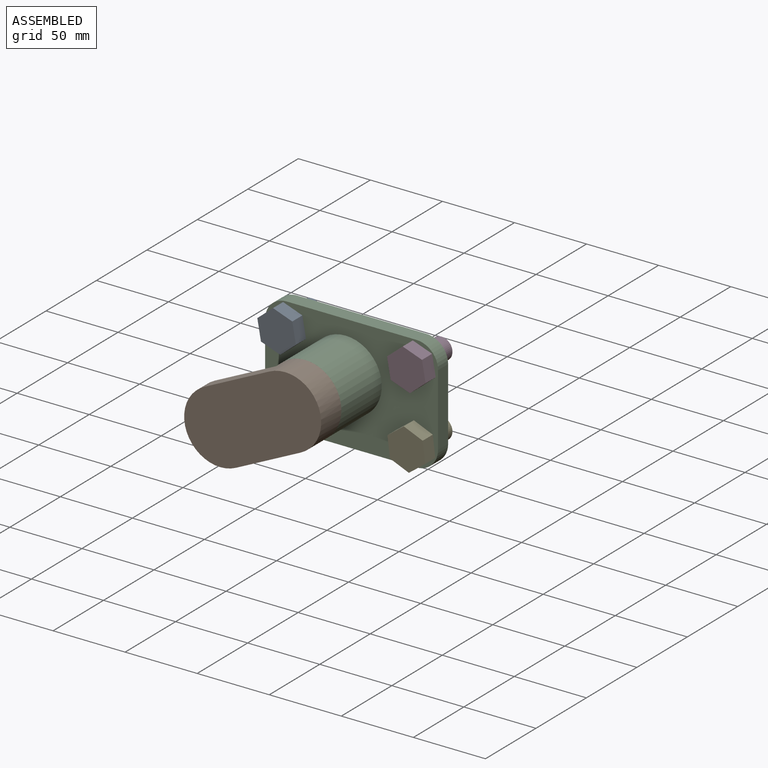
[diagram: assembled view]
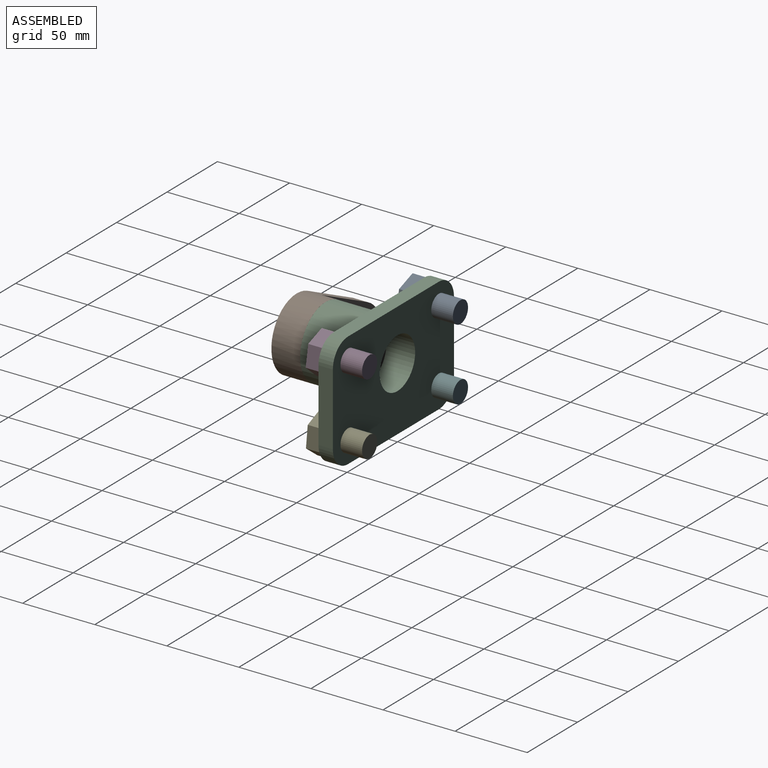
[diagram: assembled view, second angle]
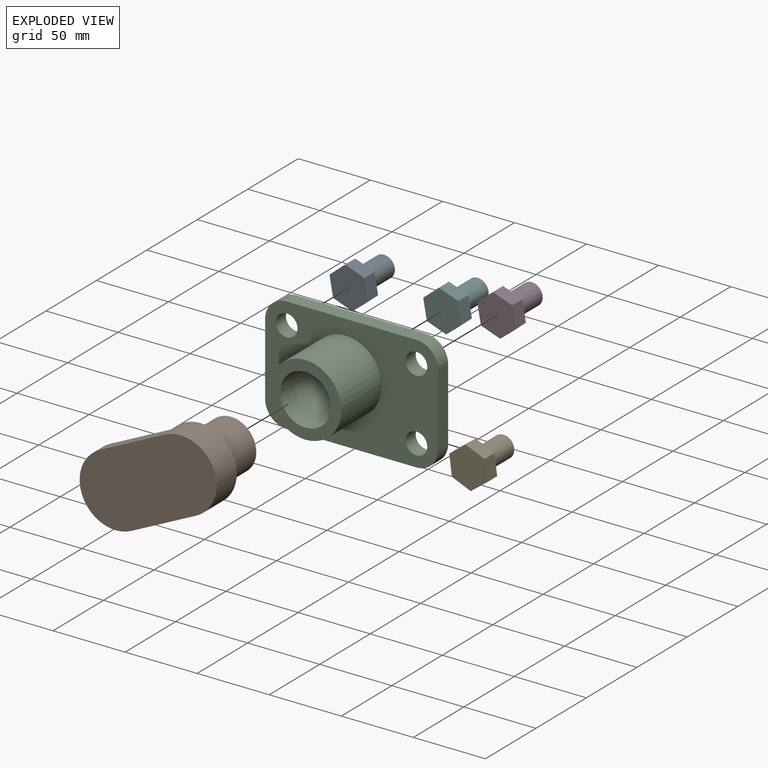
[diagram: exploded view]
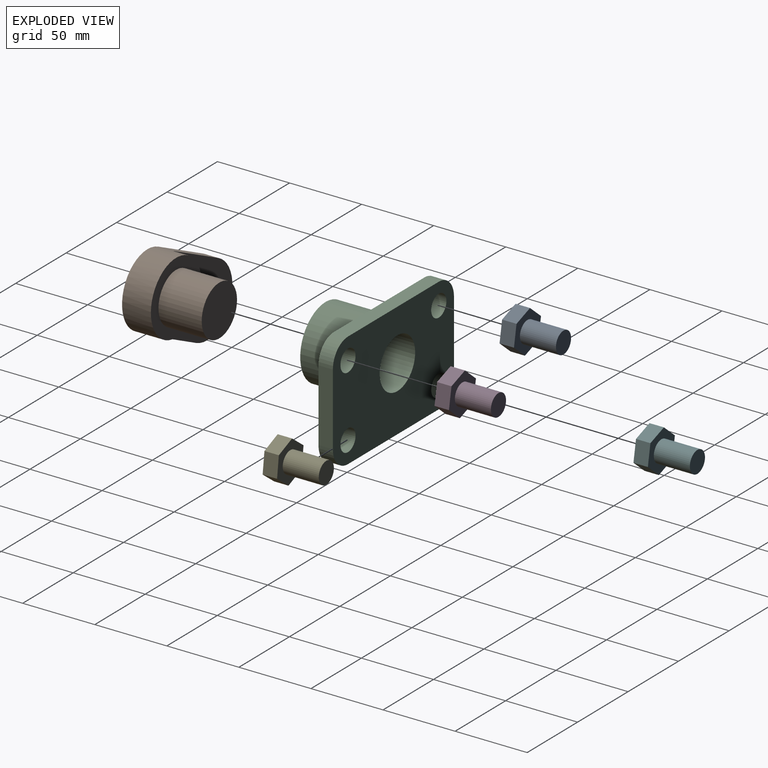
[diagram: exploded view, second angle]
ASSEMBLY  parts=6 mates=10
PART A: 10 faces, bbox 26.8x35x28 mm
  f0: cylinder r=7.5mm len=25mm, axis (0,1,0), area 1178.1mm2, adj f1,f8
  f1: plane 15x15mm, normal (0,-1,0), area 176.7mm2, adj f0
  f2: plane 10.87x10mm, normal (0.65,0,0.76), area 142.2mm2, adj f3,f7,f8,f9
  f3: plane 13.38x10mm, normal (-0.34,0,0.94), area 142.2mm2, adj f2,f4,f8,f9
  f4: plane 14x10mm, normal (-0.98,0,0.18), area 142.2mm2, adj f3,f5,f8,f9
  f5: plane 10.87x10mm, normal (-0.65,0,-0.76), area 142.2mm2, adj f4,f6,f8,f9
  f6: plane 13.38x10mm, normal (0.34,0,-0.94), area 142.2mm2, adj f5,f7,f8,f9
  f7: plane 14x10mm, normal (0.98,0,-0.18), area 142.2mm2, adj f2,f6,f8,f9
  f8: plane 28x26.76mm, normal (0,-1,0), area 348.9mm2, adj f0,f2,f3,f4,f5,f6,f7
  f9: plane 28x26.76mm, normal (0,1,0), area 525.6mm2, adj f2,f3,f4,f5,f6,f7
PART B: 9 faces, bbox 100x50x50 mm
  f0: cylinder r=25mm len=50mm, axis (0,1,0), area 785.4mm2, adj f1,f2,f3,f4
  f1: plane 50x10mm, normal (0,0,-1), area 500mm2, adj f0,f3,f4,f7
  f2: plane 50x10mm, normal (0,0,1), area 500mm2, adj f0,f3,f4,f7
  f3: plane 75x50mm, normal (0,-1,0), area 2500mm2, adj f0,f1,f2,f7
  f4: plane 100x50mm, normal (0,1,0), area 4463.5mm2, adj f0,f1,f2,f7
  f5: cylinder r=17.5mm len=35mm, axis (0,1,0), area 3298.7mm2, adj f6,f8
  f6: plane 35x35mm, normal (0,-1,0), area 962.1mm2, adj f5
  f7: cylinder r=25mm len=50mm, axis (0,1,0), area 2356.2mm2, adj f1,f2,f3,f4,f8
  f8: plane 50x50mm, normal (0,-1,0), area 1001.4mm2, adj f5,f7
PART C: 17 faces, bbox 120x50x80 mm
  f0: cylinder r=17.5mm len=50mm, axis (0,1,0), area 5497.8mm2, adj f2,f3
  f1: cylinder r=25mm len=50mm, axis (0,1,0), area 6283.2mm2, adj f2,f16
  f2: plane 50x50mm, normal (0,-1,0), area 1001.4mm2, adj f0,f1
  f3: plane 120x80mm, normal (0,1,0), area 7737.9mm2, adj f0,f4,f5,f6,f7,f8,f9,f10
  f4: plane 50x10mm, normal (1,0,0), area 500mm2, adj f3,f5,f15,f16
  f5: cylinder r=15mm len=15mm, axis (0,1,0), area 235.6mm2, adj f3,f4,f6,f16
  f6: plane 90x10mm, normal (0,0,1), area 900mm2, adj f3,f5,f7,f16
  f7: cylinder r=15mm len=15mm, axis (0,1,0), area 235.6mm2, adj f3,f6,f8,f16
  f8: plane 50x10mm, normal (-1,0,0), area 500mm2, adj f3,f7,f9,f16
  f9: cylinder r=15mm len=15mm, axis (0,1,0), area 235.6mm2, adj f3,f8,f10,f16
  f10: plane 90x10mm, normal (0,0,-1), area 900mm2, adj f3,f9,f15,f16
  f11: cylinder r=7.5mm len=15mm, axis (0,1,0), area 471.2mm2, adj f3,f16
  f12: cylinder r=7.5mm len=15mm, axis (0,1,0), area 471.2mm2, adj f3,f16
  f13: cylinder r=7.5mm len=15mm, axis (0,1,0), area 471.2mm2, adj f3,f16
  f14: cylinder r=7.5mm len=15mm, axis (0,1,0), area 471.2mm2, adj f3,f16
  f15: cylinder r=15mm len=15mm, axis (0,1,0), area 235.6mm2, adj f3,f4,f10,f16
  f16: plane 120x80mm, normal (0,-1,0), area 6736.5mm2, adj f1,f4,f5,f6,f7,f8,f9,f10
PART D: same geometry as A
PART E: same geometry as A
PART F: same geometry as A
PLACE A rot(axis=(1,0,0),180deg) t=(-40.95,-20,20.44)mm
PLACE B rot(axis=(0.98,0,0.22),180deg) t=(-23.03,-70,-15.63)mm
PLACE C at identity fixed
PLACE D rot(axis=(1,0,0),180deg) t=(49.05,-20,20.44)mm
PLACE E rot(axis=(0.85,0,-0.52),180deg) t=(49.05,-20,-29.56)mm
PLACE F rot(axis=(1,0,0),180deg) t=(-40.95,-20,-29.56)mm
MATE planar C.f1 <-> B.f5  axis (0,-1,0) through (0,-50,0)mm
MATE cylindrical A.f0 <-> C.f7  axis (0,1,0) through (-40.95,15,20.44)mm
MATE cylindrical F.f0 <-> C.f9  axis (0,1,0) through (-40.95,15,-29.56)mm
MATE cylindrical B.f5 <-> C.f1  axis (0,1,0) through (0,-20,0)mm
MATE planar E.f0 <-> C.f16  axis (0,1,0) through (49.05,-10,-29.56)mm
MATE planar C.f16 <-> F.f0  axis (0,-1,0) through (5.23,-10,-5.88)mm
MATE cylindrical E.f0 <-> C.f13  axis (0,1,0) through (49.05,15,-29.56)mm
MATE planar A.f8 <-> C.f16  axis (0,1,0) through (-45.13,-10,8.86)mm
MATE cylindrical D.f0 <-> C.f5  axis (0,1,0) through (49.05,15,20.44)mm
MATE planar D.f0 <-> C.f5  axis (0,1,0) through (49.05,-10,20.44)mm
